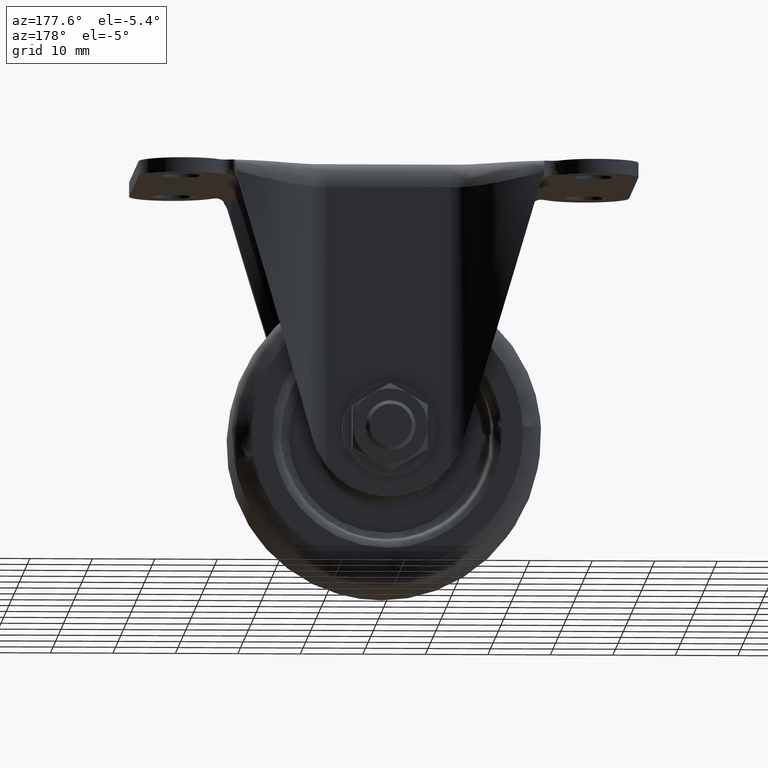
[diagram: clean part render]
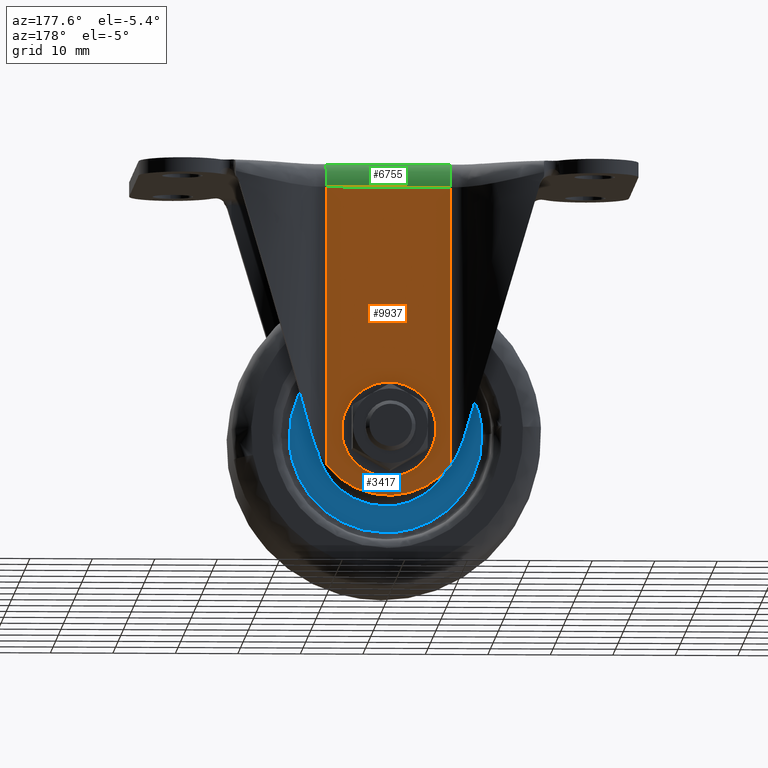
[diagram: same view with three faces highlighted in distinct colors, each labeled with its STEP entity id]
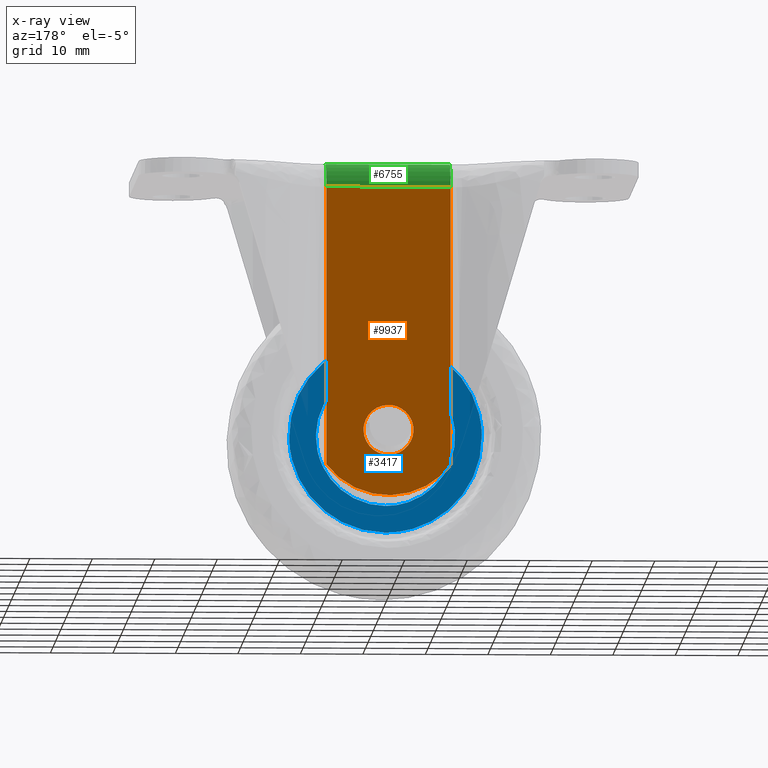
[diagram: x-ray of the same camera — body ghosted, the three highlighted faces saturated]
A machine part, auxiliary view with three faces highlighted in distinct colors.
The next image is the same camera in x-ray (body ghosted, the three faces saturated) — at least one of them is partly hidden behind the body in this view.
Their STEP definitions:

[orange] entity #9937 — the highlighted face is a freeform B-spline surface patch.
#3806=CARTESIAN_POINT('',(-3.969065433684802,18.0,-42.503492615254558));
#3807=VERTEX_POINT('',#3806);
#3813=CARTESIAN_POINT('',(0.0,18.0,-38.999999999999993));
#3814=VERTEX_POINT('',#3813);
#3815=CARTESIAN_POINT('',(-3.969065433684802,18.000000000000004,-42.503492615254558));
#3816=CARTESIAN_POINT('',(-3.530798545691170,18.000000000000004,-38.999999999999993));
#3817=CARTESIAN_POINT('',(0.0,18.0,-38.999999999999993));
#3825=(BOUNDED_CURVE()B_SPLINE_CURVE(2,(#3815,#3816,#3817),.UNSPECIFIED.,.F.,.U.)B_SPLINE_CURVE_WITH_KNOTS((3,3),(0.271473732514615,0.500000000000000),.UNSPECIFIED.)CURVE()GEOMETRIC_REPRESENTATION_ITEM()RATIONAL_B_SPLINE_CURVE((0.954005811520391,0.732264823731127,1.0))REPRESENTATION_ITEM(''));
#3826=EDGE_CURVE('',#3807,#3814,#3825,.T.);
#3828=CARTESIAN_POINT('',(3.999847692254171,18.0,-43.034906142281507));
#3829=VERTEX_POINT('',#3828);
#3830=CARTESIAN_POINT('',(0.0,18.0,-38.999999999999993));
#3831=CARTESIAN_POINT('',(4.000000000000000,18.000000000000007,-38.999999999999993));
#3832=CARTESIAN_POINT('',(4.0,18.0,-43.0));
#3833=CARTESIAN_POINT('',(4.0,18.0,-43.017453403570826));
#3834=CARTESIAN_POINT('',(3.999847692254172,18.000000000000004,-43.034906142281521));
#3842=(BOUNDED_CURVE()B_SPLINE_CURVE(2,(#3830,#3831,#3832,#3833,#3834),.UNSPECIFIED.,.F.,.U.)B_SPLINE_CURVE_WITH_KNOTS((3,2,3),(0.500000000000000,0.750000000000000,0.751539894360353),.UNSPECIFIED.)CURVE()GEOMETRIC_REPRESENTATION_ITEM()RATIONAL_B_SPLINE_CURVE((1.0,0.707106781186548,1.0,0.998195901536654,0.996414028041702))REPRESENTATION_ITEM(''));
#3843=EDGE_CURVE('',#3814,#3829,#3842,.T.);
#3923=CARTESIAN_POINT('',(0.0,18.0,-47.0));
#3924=VERTEX_POINT('',#3923);
#3925=CARTESIAN_POINT('',(3.999847692254171,18.0,-43.034906142281514));
#3926=CARTESIAN_POINT('',(3.965244841808847,18.0,-47.000000000000007));
#3927=CARTESIAN_POINT('',(0.0,18.0,-47.0));
#3935=(BOUNDED_CURVE()B_SPLINE_CURVE(2,(#3925,#3926,#3927),.UNSPECIFIED.,.F.,.U.)B_SPLINE_CURVE_WITH_KNOTS((3,3),(0.751539894360354,1.0),.UNSPECIFIED.)CURVE()GEOMETRIC_REPRESENTATION_ITEM()RATIONAL_B_SPLINE_CURVE((0.996414028041700,0.708910879649894,1.0))REPRESENTATION_ITEM(''));
#3936=EDGE_CURVE('',#3829,#3924,#3935,.T.);
#3938=CARTESIAN_POINT('',(0.0,18.0,-47.0));
#3939=CARTESIAN_POINT('',(-4.000000000000000,18.000000000000007,-47.000000000000007));
#3940=CARTESIAN_POINT('',(-4.0,18.0,-43.0));
#3941=CARTESIAN_POINT('',(-4.0,18.000000000000004,-42.750782628714830));
#3942=CARTESIAN_POINT('',(-3.969065433684802,18.0,-42.503492615254558));
#3950=(BOUNDED_CURVE()B_SPLINE_CURVE(2,(#3938,#3939,#3940,#3941,#3942),.UNSPECIFIED.,.F.,.U.)B_SPLINE_CURVE_WITH_KNOTS((3,2,3),(0.0,0.250000000000000,0.271473732514615),.UNSPECIFIED.)CURVE()GEOMETRIC_REPRESENTATION_ITEM()RATIONAL_B_SPLINE_CURVE((1.0,0.707106781186548,1.0,0.974841957455421,0.954005811520390))REPRESENTATION_ITEM(''));
#3951=EDGE_CURVE('',#3924,#3807,#3950,.T.);
#6664=CARTESIAN_POINT('',(9.928238000000000,18.0,-4.0));
#6665=VERTEX_POINT('',#6664);
#6725=CARTESIAN_POINT('',(-9.928238000000000,18.0,-4.0));
#6726=VERTEX_POINT('',#6725);
#6748=CARTESIAN_POINT('',(-9.928238000000000,18.0,-4.0));
#6749=CARTESIAN_POINT('',(9.928238000000000,18.0,-4.0));
#6750=QUASI_UNIFORM_CURVE('',1,(#6748,#6749),.UNSPECIFIED.,.F.,.U.);
#6751=EDGE_CURVE('',#6726,#6665,#6750,.T.);
#8306=CARTESIAN_POINT('',(9.928238000000000,18.0,-48.594741574812097));
#8307=VERTEX_POINT('',#8306);
#8374=CARTESIAN_POINT('',(-9.928238000000000,18.0,-48.594740267560503));
#8375=VERTEX_POINT('',#8374);
#8391=CARTESIAN_POINT('',(9.928237999999977,18.0,-48.594741574812083));
#8392=CARTESIAN_POINT('',(6.175892924997954,18.000000000000004,-53.500000370024360));
#8393=CARTESIAN_POINT('',(-0.000000322937861,18.0,-53.499999963434270));
#8394=CARTESIAN_POINT('',(-6.175893570873671,18.000000000000004,-53.499999556844188));
#8395=CARTESIAN_POINT('',(-9.928237999999995,18.0,-48.594740267560503));
#8403=(BOUNDED_CURVE()B_SPLINE_CURVE(2,(#8391,#8392,#8393,#8394,#8395),.UNSPECIFIED.,.F.,.U.)B_SPLINE_CURVE_WITH_KNOTS((3,2,3),(0.0,0.500000000000000,1.0),.UNSPECIFIED.)CURVE()GEOMETRIC_REPRESENTATION_ITEM()RATIONAL_B_SPLINE_CURVE((1.0,0.896543160316379,1.0,0.896543160316379,1.0))REPRESENTATION_ITEM(''));
#8404=EDGE_CURVE('',#8307,#8375,#8403,.T.);
#9095=CARTESIAN_POINT('',(-9.928238000000000,18.0,-48.594740267560503));
#9096=CARTESIAN_POINT('',(-9.928238000000000,18.0,-4.0));
#9097=QUASI_UNIFORM_CURVE('',1,(#9095,#9096),.UNSPECIFIED.,.F.,.U.);
#9098=EDGE_CURVE('',#8375,#6726,#9097,.T.);
#9119=CARTESIAN_POINT('',(9.928238000000000,18.0,-48.594741574812097));
#9120=CARTESIAN_POINT('',(9.928238000000000,18.0,-4.0));
#9121=QUASI_UNIFORM_CURVE('',1,(#9119,#9120),.UNSPECIFIED.,.F.,.U.);
#9122=EDGE_CURVE('',#8307,#6665,#9121,.T.);
#9920=CARTESIAN_POINT('',(-10.920068937714300,18.0,-1.527475097767064));
#9921=CARTESIAN_POINT('',(-10.920068937714300,18.0,-55.972526193360672));
#9922=CARTESIAN_POINT('',(10.920069470306490,18.0,-1.527475097767064));
#9923=CARTESIAN_POINT('',(10.920069470306490,18.0,-55.972526193360672));
#9924=B_SPLINE_SURFACE_WITH_KNOTS('',1,1,((#9920,#9922),(#9921,#9923)),.UNSPECIFIED.,.F.,.F.,.U.,(2,2),(2,2),(0.0,54.445051095593612),(0.0,21.840138408020788),.UNSPECIFIED.);
#9925=ORIENTED_EDGE('',*,*,#9098,.T.);
#9926=ORIENTED_EDGE('',*,*,#6751,.T.);
#9927=ORIENTED_EDGE('',*,*,#9122,.F.);
#9928=ORIENTED_EDGE('',*,*,#8404,.T.);
#9929=EDGE_LOOP('',(#9925,#9926,#9927,#9928));
#9930=FACE_OUTER_BOUND('',#9929,.T.);
#9931=ORIENTED_EDGE('',*,*,#3843,.F.);
#9932=ORIENTED_EDGE('',*,*,#3826,.F.);
#9933=ORIENTED_EDGE('',*,*,#3951,.F.);
#9934=ORIENTED_EDGE('',*,*,#3936,.F.);
#9935=EDGE_LOOP('',(#9931,#9932,#9933,#9934));
#9936=FACE_BOUND('',#9935,.T.);
#9937=ADVANCED_FACE('',(#9930,#9936),#9924,.F.);

[blue] entity #3417 — the highlighted face is a freeform B-spline surface patch.
#1623=CARTESIAN_POINT('',(10.880553374129249,6.500000000000000,-45.390334057465168));
#1624=VERTEX_POINT('',#1623);
#1625=CARTESIAN_POINT('',(0.0,6.500000000000000,-31.859975823539241));
#1626=VERTEX_POINT('',#1625);
#1627=CARTESIAN_POINT('',(10.880553374129249,6.500000000000000,-45.390334057465168));
#1628=CARTESIAN_POINT('',(11.140024176460761,6.500000000000000,-44.209249808781827));
#1629=CARTESIAN_POINT('',(11.140024176460759,6.500000000000000,-43.0));
#1630=CARTESIAN_POINT('',(11.140024176460765,6.500000000000000,-31.859975823539237));
#1631=CARTESIAN_POINT('',(0.0,6.500000000000000,-31.859975823539241));
#1639=(BOUNDED_CURVE()B_SPLINE_CURVE(2,(#1627,#1628,#1629,#1630,#1631),.UNSPECIFIED.,.F.,.U.)B_SPLINE_CURVE_WITH_KNOTS((3,2,3),(0.213273120218767,0.250000000000000,0.500000000000000),.UNSPECIFIED.)CURVE()GEOMETRIC_REPRESENTATION_ITEM()RATIONAL_B_SPLINE_CURVE((0.926585904683491,0.956971783855600,1.0,0.707106781186547,1.0))REPRESENTATION_ITEM(''));
#1640=EDGE_CURVE('',#1624,#1626,#1639,.T.);
#1658=CARTESIAN_POINT('',(-11.083778383562381,6.500000000000001,-41.881968070165968));
#1659=VERTEX_POINT('',#1658);
#1673=CARTESIAN_POINT('',(0.0,6.500000000000000,-31.859975823539241));
#1674=CARTESIAN_POINT('',(-10.072849894693944,6.500000000000000,-31.859975823539234));
#1675=CARTESIAN_POINT('',(-11.083778383562377,6.500000000000001,-41.881968070165975));
#1683=(BOUNDED_CURVE()B_SPLINE_CURVE(2,(#1673,#1674,#1675),.UNSPECIFIED.,.F.,.U.)B_SPLINE_CURVE_WITH_KNOTS((3,3),(0.500000000000000,0.732576558917841),.UNSPECIFIED.)CURVE()GEOMETRIC_REPRESENTATION_ITEM()RATIONAL_B_SPLINE_CURVE((1.0,0.727519612151988,0.962019632130290))REPRESENTATION_ITEM(''));
#1684=EDGE_CURVE('',#1626,#1659,#1683,.T.);
#1712=CARTESIAN_POINT('',(0.0,6.500000000000000,-54.140024176460763));
#1713=VERTEX_POINT('',#1712);
#1714=CARTESIAN_POINT('',(0.0,6.500000000000000,-54.140024176460763));
#1715=CARTESIAN_POINT('',(8.958345784466513,6.500000000000001,-54.140024176460749));
#1716=CARTESIAN_POINT('',(10.880553374129251,6.500000000000000,-45.390334057465168));
#1724=(BOUNDED_CURVE()B_SPLINE_CURVE(2,(#1714,#1715,#1716),.UNSPECIFIED.,.F.,.U.)B_SPLINE_CURVE_WITH_KNOTS((3,3),(0.0,0.213273120218767),.UNSPECIFIED.)CURVE()GEOMETRIC_REPRESENTATION_ITEM()RATIONAL_B_SPLINE_CURVE((1.0,0.750134997330947,0.926585904683491))REPRESENTATION_ITEM(''));
#1725=EDGE_CURVE('',#1713,#1624,#1724,.T.);
#1727=CARTESIAN_POINT('',(-11.083778383562379,6.500000000000001,-41.881968070165961));
#1728=CARTESIAN_POINT('',(-11.140024176460761,6.500000000000001,-42.439569232367958));
#1729=CARTESIAN_POINT('',(-11.140024176460759,6.500000000000000,-43.0));
#1730=CARTESIAN_POINT('',(-11.140024176460765,6.500000000000000,-54.140024176460756));
#1731=CARTESIAN_POINT('',(0.0,6.500000000000000,-54.140024176460763));
#1739=(BOUNDED_CURVE()B_SPLINE_CURVE(2,(#1727,#1728,#1729,#1730,#1731),.UNSPECIFIED.,.F.,.U.)B_SPLINE_CURVE_WITH_KNOTS((3,2,3),(0.732576558917841,0.750000000000000,1.0),.UNSPECIFIED.)CURVE()GEOMETRIC_REPRESENTATION_ITEM()RATIONAL_B_SPLINE_CURVE((0.962019632130291,0.979587169034560,1.0,0.707106781186547,1.0))REPRESENTATION_ITEM(''));
#1740=EDGE_CURVE('',#1659,#1713,#1739,.T.);
#3177=CARTESIAN_POINT('',(-15.415266156883670,6.500000000000000,-42.612490510523173));
#3178=VERTEX_POINT('',#3177);
#3179=CARTESIAN_POINT('',(0.0,6.500000000000000,-58.420135999999999));
#3180=VERTEX_POINT('',#3179);
#3181=CARTESIAN_POINT('',(-15.415266156883673,6.500000000000000,-42.612490510523173));
#3182=CARTESIAN_POINT('',(-15.420135999999999,6.500000000000000,-42.806214655520833));
#3183=CARTESIAN_POINT('',(-15.420135999999999,6.500000000000000,-43.0));
#3184=CARTESIAN_POINT('',(-15.420135999999994,6.500000000000000,-58.420135999999999));
#3185=CARTESIAN_POINT('',(0.0,6.500000000000000,-58.420135999999999));
#3193=(BOUNDED_CURVE()B_SPLINE_CURVE(2,(#3181,#3182,#3183,#3184,#3185),.UNSPECIFIED.,.F.,.U.)B_SPLINE_CURVE_WITH_KNOTS((3,2,3),(0.745579891769347,0.750000000000000,1.0),.UNSPECIFIED.)CURVE()GEOMETRIC_REPRESENTATION_ITEM()RATIONAL_B_SPLINE_CURVE((0.989826157680536,0.994821521091281,1.0,0.707106781186547,1.0))REPRESENTATION_ITEM(''));
#3194=EDGE_CURVE('',#3178,#3180,#3193,.T.);
#3196=CARTESIAN_POINT('',(15.415266156883670,6.500000000000000,-43.387509489476813));
#3197=VERTEX_POINT('',#3196);
#3198=CARTESIAN_POINT('',(0.0,6.500000000000000,-58.420135999999999));
#3199=CARTESIAN_POINT('',(15.037375474857217,6.500000000000002,-58.420135999999999));
#3200=CARTESIAN_POINT('',(15.415266156883671,6.500000000000000,-43.387509489476813));
#3208=(BOUNDED_CURVE()B_SPLINE_CURVE(2,(#3198,#3199,#3200),.UNSPECIFIED.,.F.,.U.)B_SPLINE_CURVE_WITH_KNOTS((3,3),(0.0,0.245579891769347),.UNSPECIFIED.)CURVE()GEOMETRIC_REPRESENTATION_ITEM()RATIONAL_B_SPLINE_CURVE((1.0,0.712285260095266,0.989826157680536))REPRESENTATION_ITEM(''));
#3209=EDGE_CURVE('',#3180,#3197,#3208,.T.);
#3267=CARTESIAN_POINT('',(0.0,6.500000000000000,-27.579864000000001));
#3268=VERTEX_POINT('',#3267);
#3269=CARTESIAN_POINT('',(0.0,6.500000000000000,-27.579864000000001));
#3270=CARTESIAN_POINT('',(-15.037375474857219,6.500000000000001,-27.579864000000008));
#3271=CARTESIAN_POINT('',(-15.415266156883670,6.500000000000000,-42.612490510523173));
#3279=(BOUNDED_CURVE()B_SPLINE_CURVE(2,(#3269,#3270,#3271),.UNSPECIFIED.,.F.,.U.)B_SPLINE_CURVE_WITH_KNOTS((3,3),(0.500000000000000,0.745579891769347),.UNSPECIFIED.)CURVE()GEOMETRIC_REPRESENTATION_ITEM()RATIONAL_B_SPLINE_CURVE((1.0,0.712285260095266,0.989826157680536))REPRESENTATION_ITEM(''));
#3280=EDGE_CURVE('',#3268,#3178,#3279,.T.);
#3286=CARTESIAN_POINT('',(15.415266156883673,6.500000000000000,-43.387509489476813));
#3287=CARTESIAN_POINT('',(15.420135999999994,6.500000000000000,-43.193785344479160));
#3288=CARTESIAN_POINT('',(15.420135999999999,6.500000000000000,-43.0));
#3289=CARTESIAN_POINT('',(15.420135999999994,6.500000000000000,-27.579864000000004));
#3290=CARTESIAN_POINT('',(0.0,6.500000000000000,-27.579864000000001));
#3298=(BOUNDED_CURVE()B_SPLINE_CURVE(2,(#3286,#3287,#3288,#3289,#3290),.UNSPECIFIED.,.F.,.U.)B_SPLINE_CURVE_WITH_KNOTS((3,2,3),(0.245579891769347,0.250000000000000,0.500000000000000),.UNSPECIFIED.)CURVE()GEOMETRIC_REPRESENTATION_ITEM()RATIONAL_B_SPLINE_CURVE((0.989826157680536,0.994821521091281,1.0,0.707106781186547,1.0))REPRESENTATION_ITEM(''));
#3299=EDGE_CURVE('',#3197,#3268,#3298,.T.);
#3400=CARTESIAN_POINT('',(-16.955251186200790,6.500000000000000,-26.039392873063949));
#3401=CARTESIAN_POINT('',(-16.955251186200790,6.500000000000000,-59.960606024001962));
#3402=CARTESIAN_POINT('',(16.955252013140122,6.500000000000000,-26.039392873063949));
#3403=CARTESIAN_POINT('',(16.955252013140122,6.500000000000000,-59.960606024001962));
#3404=B_SPLINE_SURFACE_WITH_KNOTS('',1,1,((#3400,#3402),(#3401,#3403)),.UNSPECIFIED.,.F.,.F.,.U.,(2,2),(2,2),(0.0,33.921213150938009),(0.0,33.910503199340909),.UNSPECIFIED.);
#3405=ORIENTED_EDGE('',*,*,#3194,.F.);
#3406=ORIENTED_EDGE('',*,*,#3280,.F.);
#3407=ORIENTED_EDGE('',*,*,#3299,.F.);
#3408=ORIENTED_EDGE('',*,*,#3209,.F.);
#3409=EDGE_LOOP('',(#3405,#3406,#3407,#3408));
#3410=FACE_OUTER_BOUND('',#3409,.T.);
#3411=ORIENTED_EDGE('',*,*,#1684,.T.);
#3412=ORIENTED_EDGE('',*,*,#1740,.T.);
#3413=ORIENTED_EDGE('',*,*,#1725,.T.);
#3414=ORIENTED_EDGE('',*,*,#1640,.T.);
#3415=EDGE_LOOP('',(#3411,#3412,#3413,#3414));
#3416=FACE_BOUND('',#3415,.T.);
#3417=ADVANCED_FACE('',(#3410,#3416),#3404,.F.);

[green] entity #6755 — the highlighted face is a freeform B-spline surface patch.
#6664=CARTESIAN_POINT('',(9.928238000000000,18.0,-4.0));
#6665=VERTEX_POINT('',#6664);
#6666=CARTESIAN_POINT('',(9.928238000000000,14.0,0.0));
#6667=VERTEX_POINT('',#6666);
#6668=CARTESIAN_POINT('',(9.928238000000000,18.0,-4.0));
#6669=CARTESIAN_POINT('',(9.928238000000000,18.000000000000007,0.0));
#6670=CARTESIAN_POINT('',(9.928238000000000,14.0,0.0));
#6678=(BOUNDED_CURVE()B_SPLINE_CURVE(2,(#6668,#6669,#6670),.UNSPECIFIED.,.F.,.U.)CURVE()GEOMETRIC_REPRESENTATION_ITEM()QUASI_UNIFORM_CURVE()RATIONAL_B_SPLINE_CURVE((1.0,0.707106781186548,1.0))REPRESENTATION_ITEM(''));
#6679=EDGE_CURVE('',#6665,#6667,#6678,.T.);
#6711=CARTESIAN_POINT('',(10.424649900000000,17.999847692256679,-4.034906141993492));
#6712=CARTESIAN_POINT('',(-10.437060197499999,17.999847692256679,-4.034906141993492));
#6713=CARTESIAN_POINT('',(10.424649900000002,18.037279946718190,0.254405368047009));
#6714=CARTESIAN_POINT('',(-10.437060197499999,18.037279946718190,0.254405368047009));
#6715=CARTESIAN_POINT('',(10.424649900000000,13.755805841860569,-0.007460806312531));
#6716=CARTESIAN_POINT('',(-10.437060197499999,13.755805841860569,-0.007460806312531));
#6724=(BOUNDED_SURFACE()B_SPLINE_SURFACE(1,2,((#6711,#6713,#6715),(#6712,#6714,#6716)),.UNSPECIFIED.,.F.,.F.,.U.)B_SPLINE_SURFACE_WITH_KNOTS((2,2),(3,3),(0.0,20.861710097500001),(0.0,6.956997999374929),.UNSPECIFIED.)GEOMETRIC_REPRESENTATION_ITEM()RATIONAL_B_SPLINE_SURFACE(((1.0,0.681998360062499,1.0),(1.0,0.681998360062499,1.0)))REPRESENTATION_ITEM('')SURFACE());
#6725=CARTESIAN_POINT('',(-9.928238000000000,18.0,-4.0));
#6726=VERTEX_POINT('',#6725);
#6727=CARTESIAN_POINT('',(-9.928238000000000,14.0,0.0));
#6728=VERTEX_POINT('',#6727);
#6729=CARTESIAN_POINT('',(-9.928238000000000,18.0,-4.0));
#6730=CARTESIAN_POINT('',(-9.928238000000000,18.000000000000007,0.0));
#6731=CARTESIAN_POINT('',(-9.928238000000000,14.0,0.0));
#6739=(BOUNDED_CURVE()B_SPLINE_CURVE(2,(#6729,#6730,#6731),.UNSPECIFIED.,.F.,.U.)CURVE()GEOMETRIC_REPRESENTATION_ITEM()QUASI_UNIFORM_CURVE()RATIONAL_B_SPLINE_CURVE((1.0,0.707106781186548,1.0))REPRESENTATION_ITEM(''));
#6740=EDGE_CURVE('',#6726,#6728,#6739,.T.);
#6741=ORIENTED_EDGE('',*,*,#6740,.T.);
#6742=CARTESIAN_POINT('',(9.928238000000000,14.0,0.0));
#6743=CARTESIAN_POINT('',(-9.928238000000000,14.0,0.0));
#6744=QUASI_UNIFORM_CURVE('',1,(#6742,#6743),.UNSPECIFIED.,.F.,.U.);
#6745=EDGE_CURVE('',#6667,#6728,#6744,.T.);
#6746=ORIENTED_EDGE('',*,*,#6745,.F.);
#6747=ORIENTED_EDGE('',*,*,#6679,.F.);
#6748=CARTESIAN_POINT('',(-9.928238000000000,18.0,-4.0));
#6749=CARTESIAN_POINT('',(9.928238000000000,18.0,-4.0));
#6750=QUASI_UNIFORM_CURVE('',1,(#6748,#6749),.UNSPECIFIED.,.F.,.U.);
#6751=EDGE_CURVE('',#6726,#6665,#6750,.T.);
#6752=ORIENTED_EDGE('',*,*,#6751,.F.);
#6753=EDGE_LOOP('',(#6741,#6746,#6747,#6752));
#6754=FACE_OUTER_BOUND('',#6753,.T.);
#6755=ADVANCED_FACE('',(#6754),#6724,.T.);